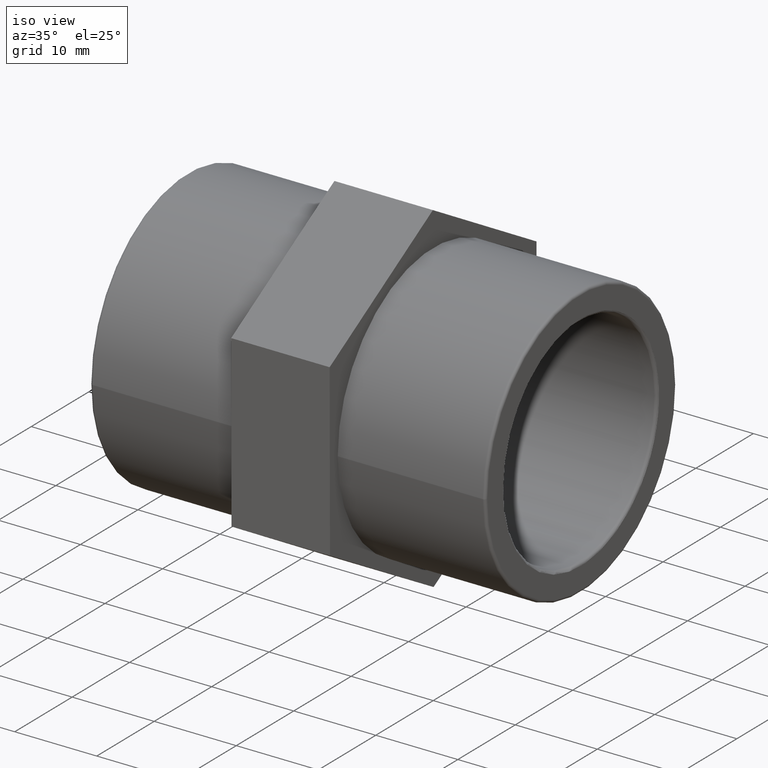
[diagram: clean part render]
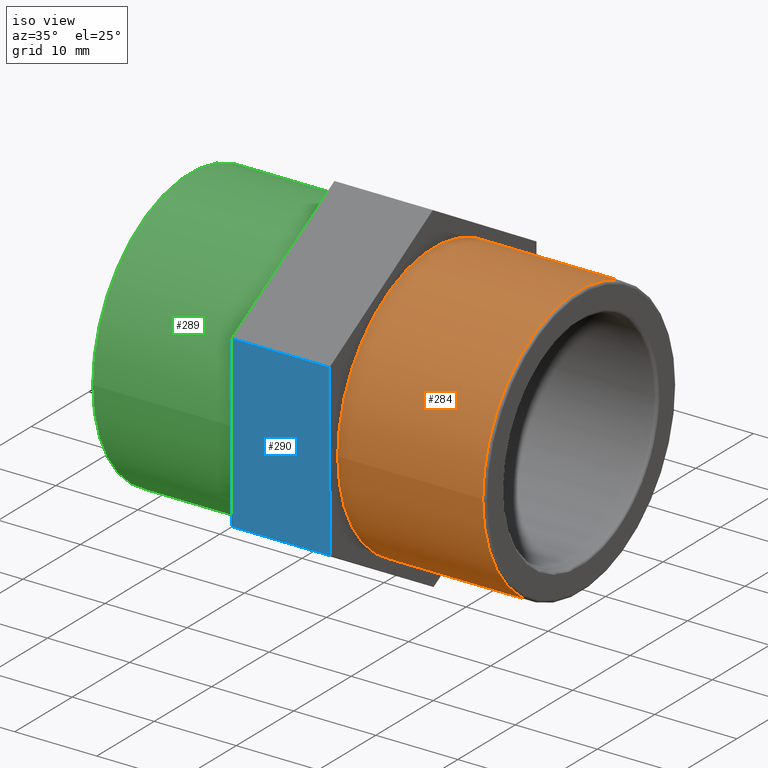
[diagram: same view with three faces highlighted in distinct colors, each labeled with its STEP entity id]
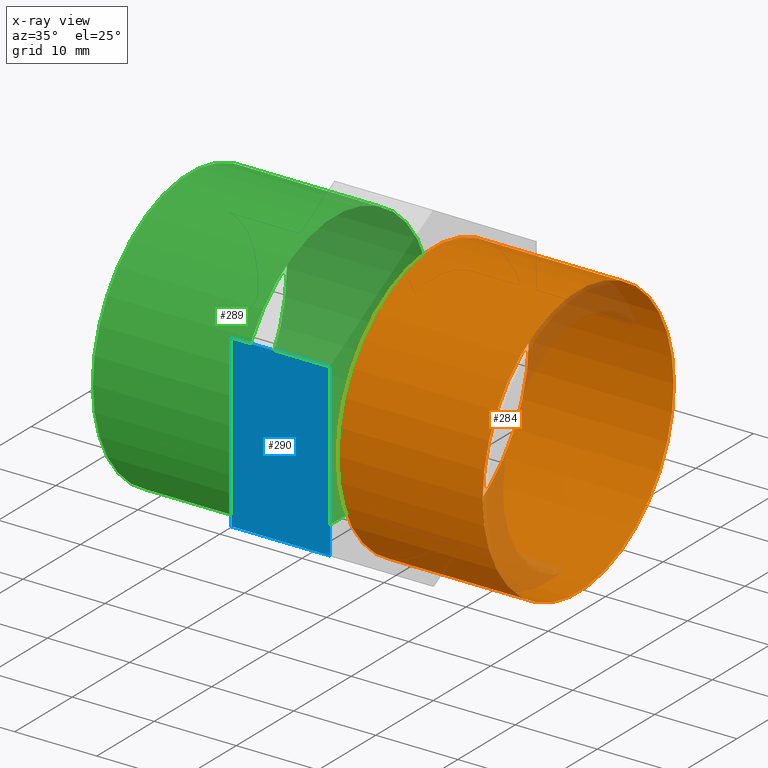
[diagram: x-ray of the same camera — body ghosted, the three highlighted faces saturated]
A machine part, iso view with three faces highlighted in distinct colors.
The next image is the same camera in x-ray (body ghosted, the three faces saturated) — at least one of them is partly hidden behind the body in this view.
Their STEP definitions:

[orange] entity #284 — the highlighted cylindrical surface (bore or boss wall) has radius 16.6245 mm, axis along (-1, -0, 0).
#52=CYLINDRICAL_SURFACE('',#312,16.6245);
#72=FACE_BOUND('',#113,.T.);
#87=FACE_OUTER_BOUND('',#112,.T.);
#112=EDGE_LOOP('',(#220));
#113=EDGE_LOOP('',(#221));
#144=CIRCLE('',#311,16.6245);
#145=CIRCLE('',#313,16.6245);
#158=VERTEX_POINT('',#441);
#159=VERTEX_POINT('',#444);
#184=EDGE_CURVE('',#158,#158,#144,.T.);
#185=EDGE_CURVE('',#159,#159,#145,.T.);
#220=ORIENTED_EDGE('',*,*,#185,.F.);
#221=ORIENTED_EDGE('',*,*,#184,.F.);
#284=ADVANCED_FACE('',(#87,#72),#52,.T.);
#311=AXIS2_PLACEMENT_3D('',#442,#356,#357);
#312=AXIS2_PLACEMENT_3D('',#443,#358,#359);
#313=AXIS2_PLACEMENT_3D('',#445,#360,#361);
#356=DIRECTION('center_axis',(1.,1.83697019872103E-16,0.));
#357=DIRECTION('ref_axis',(-1.83651437199265E-16,1.,6.12323399573677E-17));
#358=DIRECTION('center_axis',(-1.,-1.83697019872103E-16,0.));
#359=DIRECTION('ref_axis',(1.84139490753436E-16,-1.,0.));
#360=DIRECTION('center_axis',(-1.,-1.83697019872103E-16,0.));
#361=DIRECTION('ref_axis',(0.,0.,1.));
#441=CARTESIAN_POINT('',(23.66751,-16.6245,-3.05387110686378E-15));
#442=CARTESIAN_POINT('Origin',(23.66751,8.75637953172367E-15,0.));
#443=CARTESIAN_POINT('Origin',(15.,7.16418377501202E-15,0.));
#444=CARTESIAN_POINT('',(6.00000000000001,-16.6245,0.));
#445=CARTESIAN_POINT('Origin',(6.00000000000001,5.51091059616309E-15,0.));

[blue] entity #290 — the highlighted planar face has unit normal (0, -1, -0.003).
#15=LINE('',#466,#33);
#16=LINE('',#468,#34);
#17=LINE('',#470,#35);
#18=LINE('',#471,#36);
#33=VECTOR('',#386,20.7846096908266);
#34=VECTOR('',#387,12.);
#35=VECTOR('',#388,20.7846096908266);
#36=VECTOR('',#389,12.);
#58=PLANE('',#325);
#93=FACE_OUTER_BOUND('',#124,.T.);
#124=EDGE_LOOP('',(#232,#233,#234,#235));
#166=VERTEX_POINT('',#464);
#167=VERTEX_POINT('',#465);
#168=VERTEX_POINT('',#467);
#169=VERTEX_POINT('',#469);
#192=EDGE_CURVE('',#166,#167,#15,.T.);
#193=EDGE_CURVE('',#168,#167,#16,.T.);
#194=EDGE_CURVE('',#168,#169,#17,.T.);
#195=EDGE_CURVE('',#169,#166,#18,.T.);
#232=ORIENTED_EDGE('',*,*,#192,.T.);
#233=ORIENTED_EDGE('',*,*,#193,.F.);
#234=ORIENTED_EDGE('',*,*,#194,.T.);
#235=ORIENTED_EDGE('',*,*,#195,.T.);
#290=ADVANCED_FACE('',(#93),#58,.T.);
#325=AXIS2_PLACEMENT_3D('',#463,#384,#385);
#384=DIRECTION('center_axis',(1.23357572259165E-16,-0.999995609627469,-0.00296322894591754));
#385=DIRECTION('ref_axis',(0.,-0.00296322894591761,0.999995609627469));
#386=DIRECTION('',(-5.44336326563805E-19,0.00296322894591754,-0.999995609627469));
#387=DIRECTION('',(-1.,-1.23358113847239E-16,0.));
#388=DIRECTION('',(5.44336326563805E-19,-0.00296322894591754,0.999995609627469));
#389=DIRECTION('',(-1.,-1.23358113847239E-16,0.));
#463=CARTESIAN_POINT('Origin',(6.00000000000001,-17.9691261947618,-10.4455973403501));
#464=CARTESIAN_POINT('',(-5.99999999999999,-18.0307157518272,10.3389210982971));
#465=CARTESIAN_POINT('',(-5.99999999999999,-17.9691261947618,-10.4455973403501));
#466=CARTESIAN_POINT('',(-5.99999999999999,-17.9845235840281,-5.24946773068833));
#467=CARTESIAN_POINT('',(6.00000000000001,-17.9691261947618,-10.4455973403501));
#468=CARTESIAN_POINT('',(6.00000000000001,-17.9691261947618,-10.4455973403501));
#469=CARTESIAN_POINT('',(6.00000000000001,-18.0307157518272,10.3389210982971));
#470=CARTESIAN_POINT('',(6.00000000000001,-17.9691261947618,-10.4455973403501));
#471=CARTESIAN_POINT('',(6.00000000000001,-18.0307157518272,10.3389210982971));

[green] entity #289 — the highlighted cylindrical surface (bore or boss wall) has radius 16.8819 mm, axis along (-1, -0, 0).
#54=CYLINDRICAL_SURFACE('',#323,16.8819);
#77=FACE_BOUND('',#123,.T.);
#92=FACE_OUTER_BOUND('',#122,.T.);
#122=EDGE_LOOP('',(#230));
#123=EDGE_LOOP('',(#231));
#150=CIRCLE('',#322,16.8819);
#151=CIRCLE('',#324,16.8819);
#164=VERTEX_POINT('',#458);
#165=VERTEX_POINT('',#461);
#190=EDGE_CURVE('',#164,#164,#150,.T.);
#191=EDGE_CURVE('',#165,#165,#151,.T.);
#230=ORIENTED_EDGE('',*,*,#191,.T.);
#231=ORIENTED_EDGE('',*,*,#190,.F.);
#289=ADVANCED_FACE('',(#92,#77),#54,.T.);
#322=AXIS2_PLACEMENT_3D('',#459,#378,#379);
#323=AXIS2_PLACEMENT_3D('',#460,#380,#381);
#324=AXIS2_PLACEMENT_3D('',#462,#382,#383);
#378=DIRECTION('center_axis',(-1.,-1.83697019872103E-16,0.));
#379=DIRECTION('ref_axis',(-1.84961542051443E-16,1.,6.12323399573677E-17));
#380=DIRECTION('center_axis',(-1.,-1.83697019872103E-16,0.));
#381=DIRECTION('ref_axis',(1.84139490753436E-16,-1.,0.));
#382=DIRECTION('center_axis',(-1.,-1.83697019872103E-16,0.));
#383=DIRECTION('ref_axis',(0.,0.,1.));
#458=CARTESIAN_POINT('',(-23.66751,-16.8819,1.03371823992629E-15));
#459=CARTESIAN_POINT('Origin',(-23.66751,6.10774221372751E-17,0.));
#460=CARTESIAN_POINT('Origin',(-15.,1.65327317884893E-15,0.));
#461=CARTESIAN_POINT('',(-5.99999999999999,-16.8819,0.));
#462=CARTESIAN_POINT('Origin',(-5.99999999999999,3.30654635769786E-15,0.));